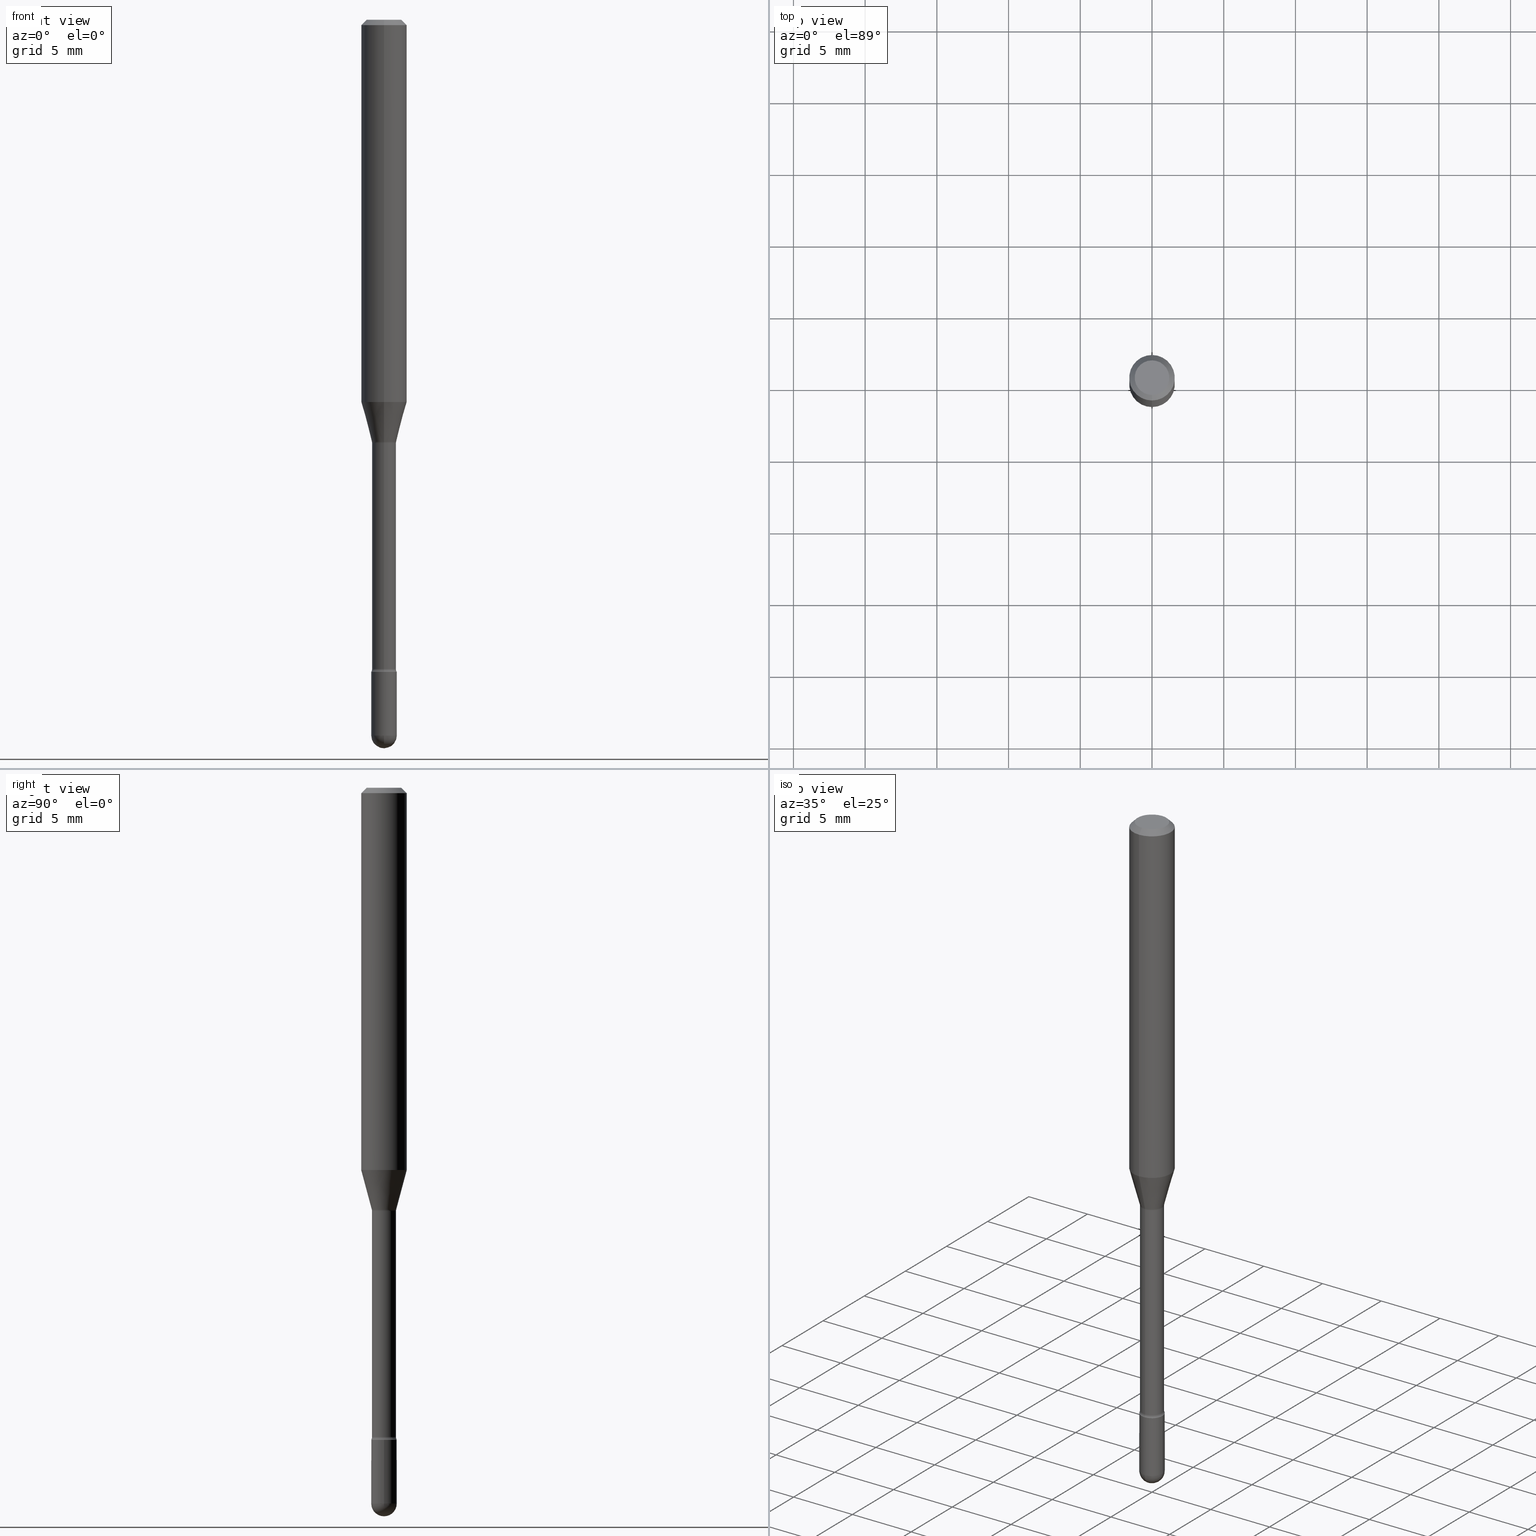
[diagram: canonical four-view strip — front | top / right | iso, engineering-drawing reading convention]
A machine part, canonical four-view strip (front | top / right | iso — engineering-drawing reading convention). The complete STEP part file that produces these views, byte-faithful:
ISO-10303-21;
HEADER;
FILE_DESCRIPTION (( 'STEP AP203' ),
    '1' );
FILE_NAME ('09814.STEP',
    '2024-04-10T01:43:54',
    ( '' ),
    ( '' ),
    'SwSTEP 2.0',
    'SolidWorks 2023',
    '' );
FILE_SCHEMA (( 'CONFIG_CONTROL_DESIGN' ));
ENDSEC;

DATA;
#1 = CARTESIAN_POINT ( 'NONE',  ( -0.03500000000000000333, 2.486899575160350887E-16, -1.721627281589217108E-30 ) ) ;
#2 = PRODUCT_DEFINITION ( 'UNKNOWN', '', #318, #170 ) ;
#3 = VERTEX_POINT ( 'NONE', #83 ) ;
#4 = DIRECTION ( 'NONE',  ( -2.445497683573463397E-29, 3.491439984779462686E-15, 1.000000000000000000 ) ) ;
#5 = VECTOR ( 'NONE', #33, 39.37007874015748854 ) ;
#6 = VERTEX_POINT ( 'NONE', #541 ) ;
#7 = DIRECTION ( 'NONE',  ( -6.982962677686266711E-15, -1.000000000000000000, 3.491439984779463081E-15 ) ) ;
#8 = ORIENTED_EDGE ( 'NONE', *, *, #359, .T. ) ;
#9 = CARTESIAN_POINT ( 'NONE',  ( 4.440892098500625669E-16, 0.06250000000000000000, 2.598583998425296453E-16 ) ) ;
#10 = VERTEX_POINT ( 'NONE', #550 ) ;
#11 = EDGE_CURVE ( 'NONE', #226, #314, #89, .T. ) ;
#12 = EDGE_LOOP ( 'NONE', ( #221, #311, #223, #446 ) ) ;
#13 = FACE_OUTER_BOUND ( 'NONE', #411, .T. ) ;
#14 = ORIENTED_EDGE ( 'NONE', *, *, #23, .F. ) ;
#15 = ORIENTED_EDGE ( 'NONE', *, *, #220, .T. ) ;
#16 =( CONVERSION_BASED_UNIT ( 'INCH', #499 ) LENGTH_UNIT ( ) NAMED_UNIT ( #372 ) );
#17 = DIRECTION ( 'NONE',  ( -1.000000000000000000, 6.982962677686265922E-15, -4.883557194083112340E-29 ) ) ;
#18 = ORIENTED_EDGE ( 'NONE', *, *, #82, .T. ) ;
#19 = DATE_TIME_ROLE ( 'creation_date' ) ;
#20 = DIRECTION ( 'NONE',  ( -2.445497683573463397E-29, 3.491439984779462686E-15, 1.000000000000000000 ) ) ;
#21 = APPROVAL_DATE_TIME ( #423, #224 ) ;
#22 = FACE_OUTER_BOUND ( 'NONE', #322, .T. ) ;
#23 = EDGE_CURVE ( 'NONE', #226, #324, #146, .T. ) ;
#24 = CIRCLE ( 'NONE', #365, 0.03500000000000001721 ) ;
#25 = CALENDAR_DATE ( 2024, 9, 4 ) ;
#26 = CARTESIAN_POINT ( 'NONE',  ( 4.805346204153793345E-29, -6.860760830826780393E-15, -1.964999999999999858 ) ) ;
#27 = PERSON_AND_ORGANIZATION ( #548, #217 ) ;
#28 = DIRECTION ( 'NONE',  ( -6.982962677686266711E-15, -1.000000000000000000, 0.000000000000000000 ) ) ;
#29 = EDGE_CURVE ( 'NONE', #234, #187, #565, .T. ) ;
#30 = DIRECTION ( 'NONE',  ( -2.445497683573463397E-29, 3.491439984779462686E-15, 1.000000000000000000 ) ) ;
#31 = CIRCLE ( 'NONE', #353, 0.03500000000000000333 ) ;
#32 = LOCAL_TIME ( 21, 43, 54.00000000000000000, #412 ) ;
#33 = DIRECTION ( 'NONE',  ( 1.839019923739594793E-15, 0.2588190451025241812, 0.9659258262890673130 ) ) ;
#34 = FACE_OUTER_BOUND ( 'NONE', #39, .T. ) ;
#35 = FACE_OUTER_BOUND ( 'NONE', #177, .T. ) ;
#36 = AXIS2_PLACEMENT_3D ( 'NONE', #515, #113, #339 ) ;
#37 = DIRECTION ( 'NONE',  ( -6.982962677686265922E-15, -1.000000000000000000, 3.483106191921935554E-15 ) ) ;
#38 = CC_DESIGN_APPROVAL ( #349, ( #263 ) ) ;
#39 = EDGE_LOOP ( 'NONE', ( #142, #417, #49, #94 ) ) ;
#40 = EDGE_CURVE ( 'NONE', #324, #270, #68, .T. ) ;
#41 = DIRECTION ( 'NONE',  ( -2.445468806185136597E-29, 3.491481338843145583E-15, 1.000000000000000000 ) ) ;
#42 = ORIENTED_EDGE ( 'NONE', *, *, #413, .T. ) ;
#43 = CARTESIAN_POINT ( 'NONE',  ( 4.805346204153793345E-29, -6.860760830826780393E-15, -1.964999999999999858 ) ) ;
#44 = CIRCLE ( 'NONE', #163, 0.03500000000000000333 ) ;
#45 = VERTEX_POINT ( 'NONE', #544 ) ;
#46 = AXIS2_PLACEMENT_3D ( 'NONE', #132, #92, #449 ) ;
#47 = DIRECTION ( 'NONE',  ( -6.982962677686266711E-15, -1.000000000000000000, 3.491439984779463870E-15 ) ) ;
#48 = ORIENTED_EDGE ( 'NONE', *, *, #40, .T. ) ;
#49 = ORIENTED_EDGE ( 'NONE', *, *, #188, .T. ) ;
#50 = FACE_OUTER_BOUND ( 'NONE', #179, .T. ) ;
#51 = EDGE_LOOP ( 'NONE', ( #376, #14, #308, #102 ) ) ;
#52 = ORIENTED_EDGE ( 'NONE', *, *, #359, .F. ) ;
#53 = CARTESIAN_POINT ( 'NONE',  ( -3.773273898774340269E-16, -0.04749999999999999362, 8.309440288745416751E-17 ) ) ;
#54 = DIRECTION ( 'NONE',  ( -6.982962677686265922E-15, -1.000000000000000000, 0.000000000000000000 ) ) ;
#55 = AXIS2_PLACEMENT_3D ( 'NONE', #128, #172, #218 ) ;
#56 = APPROVAL_PERSON_ORGANIZATION ( #335, #349, #248 ) ;
#57 = ORIENTED_EDGE ( 'NONE', *, *, #329, .F. ) ;
#58 =( LENGTH_UNIT ( ) NAMED_UNIT ( * ) SI_UNIT ( $, .METRE. ) );
#59 = DIRECTION ( 'NONE',  ( -2.445468806185136597E-29, 3.491481338843145583E-15, 1.000000000000000000 ) ) ;
#60 = APPLICATION_PROTOCOL_DEFINITION ( 'international standard', 'config_control_design', 1994, #280 ) ;
#61 = EDGE_CURVE ( 'NONE', #226, #6, #279, .T. ) ;
#62 = CARTESIAN_POINT ( 'NONE',  ( 2.841573096316353332E-29, -4.057013286636126142E-15, -1.161974787463810888 ) ) ;
#63 = ORIENTED_EDGE ( 'NONE', *, *, #29, .T. ) ;
#64 = CARTESIAN_POINT ( 'NONE',  ( 0.000000000000000000, 0.000000000000000000, 0.000000000000000000 ) ) ;
#65 = FACE_OUTER_BOUND ( 'NONE', #489, .T. ) ;
#66 = APPROVAL ( #139, 'UNSPECIFIED' ) ;
#67 = CIRCLE ( 'NONE', #208, 0.04749999999999999362 ) ;
#68 = CIRCLE ( 'NONE', #209, 0.01500000000000001853 ) ;
#69 = DIRECTION ( 'NONE',  ( -2.445497683573463397E-29, 3.491439984779462686E-15, 1.000000000000000000 ) ) ;
#70 = ADVANCED_FACE ( 'NONE', ( #143 ), #328, .F. ) ;
#71 = PLANE ( 'NONE',  #36 ) ;
#72 = CARTESIAN_POINT ( 'NONE',  ( 2.444036937190673962E-16, 0.03499999999999315464, -1.964999999999999858 ) ) ;
#73 = CIRCLE ( 'NONE', #87, 0.03500000000000000333 ) ;
#74 = DATE_AND_TIME ( #393, #229 ) ;
#75 = ADVANCED_FACE ( 'NONE', ( #22 ), #199, .T. ) ;
#76 = CARTESIAN_POINT ( 'NONE',  ( 2.374002335562008662E-16, 0.03341111260565993862, -1.158092501787273187 ) ) ;
#77 = CARTESIAN_POINT ( 'NONE',  ( 2.566626353440528363E-29, -3.664375532466852274E-15, -1.049531296095961297 ) ) ;
#78 = EDGE_CURVE ( 'NONE', #314, #270, #300, .T. ) ;
#79 = DIRECTION ( 'NONE',  ( 6.982962677686265922E-15, 1.000000000000000000, -3.483106191921935554E-15 ) ) ;
#80 = AXIS2_PLACEMENT_3D ( 'NONE', #475, #299, #561 ) ;
#81 = AXIS2_PLACEMENT_3D ( 'NONE', #307, #485, #488 ) ;
#82 = EDGE_CURVE ( 'NONE', #362, #495, #152, .T. ) ;
#83 = CARTESIAN_POINT ( 'NONE',  ( 0.03500000000000000333, -6.799659907397025402E-15, -1.964999999999999858 ) ) ;
#84 = CARTESIAN_POINT ( 'NONE',  ( 3.668246525360215467E-31, -5.237159977169223045E-17, -0.01500000000000008271 ) ) ;
#85 = ORIENTED_EDGE ( 'NONE', *, *, #78, .F. ) ;
#86 = DIRECTION ( 'NONE',  ( -2.445497683573463397E-29, 3.491439984779462686E-15, 1.000000000000000000 ) ) ;
#87 = AXIS2_PLACEMENT_3D ( 'NONE', #371, #140, #326 ) ;
#88 = ORIENTED_EDGE ( 'NONE', *, *, #309, .F. ) ;
#89 = CIRCLE ( 'NONE', #468, 0.01500000000000001853 ) ;
#90 = LOCAL_TIME ( 21, 43, 54.00000000000000000, #457 ) ;
#91 = SPHERICAL_SURFACE ( 'NONE', #509, 0.03500000000000001721 ) ;
#92 = DIRECTION ( 'NONE',  ( -2.445497683573463397E-29, 3.491439984779462686E-15, 1.000000000000000000 ) ) ;
#93 = ORIENTED_EDGE ( 'NONE', *, *, #431, .T. ) ;
#94 = ORIENTED_EDGE ( 'NONE', *, *, #121, .F. ) ;
#95 = DIRECTION ( 'NONE',  ( -6.982962677686265922E-15, -1.000000000000000000, 3.491439984779462292E-15 ) ) ;
#96 = ORIENTED_EDGE ( 'NONE', *, *, #283, .T. ) ;
#97 = EDGE_CURVE ( 'NONE', #324, #226, #312, .T. ) ;
#98 =( NAMED_UNIT ( * ) SI_UNIT ( $, .STERADIAN. ) SOLID_ANGLE_UNIT ( ) );
#99 = CARTESIAN_POINT ( 'NONE',  ( 3.403499704291320534E-16, 0.04789999999999385027, -1.782345589506696415 ) ) ;
#100 = AXIS2_PLACEMENT_3D ( 'NONE', #461, #154, #236 ) ;
#101 = ADVANCED_FACE ( 'NONE', ( #65 ), #115, .F. ) ;
#102 = ORIENTED_EDGE ( 'NONE', *, *, #78, .T. ) ;
#103 = DIRECTION ( 'NONE',  ( -2.445468806185136597E-29, 3.491481338843145583E-15, 1.000000000000000000 ) ) ;
#104 = ORIENTED_EDGE ( 'NONE', *, *, #141, .T. ) ;
#105 = APPROVAL_ROLE ( '' ) ;
#106 = CARTESIAN_POINT ( 'NONE',  ( 4.358722010466005313E-29, -6.222952657899001696E-15, -1.782345589506696193 ) ) ;
#107 = DIRECTION ( 'NONE',  ( 1.000000000000000000, 0.000000000000000000, 0.000000000000000000 ) ) ;
#108 = DIRECTION ( 'NONE',  ( -1.807323732225324617E-15, -0.2588190451025174088, 0.9659258262890690894 ) ) ;
#109 = EDGE_CURVE ( 'NONE', #187, #45, #497, .T. ) ;
#110 = CONICAL_SURFACE ( 'NONE', #305, 0.06250000000000000000, 0.7853981633974483900 ) ;
#111 = CIRCLE ( 'NONE', #80, 0.04749999999999999362 ) ;
#112 = CARTESIAN_POINT ( 'NONE',  ( 4.377440853596499335E-29, -6.249677572755238571E-15, -1.790000000000000036 ) ) ;
#113 = DIRECTION ( 'NONE',  ( -2.438088387897960049E-29, 3.491481338843145188E-15, 1.000000000000000000 ) ) ;
#114 = CARTESIAN_POINT ( 'NONE',  ( 4.377389163071394665E-29, -6.249751596529231267E-15, -1.790000000000000036 ) ) ;
#115 = TOROIDAL_SURFACE ( 'NONE', #171, 0.04789999999999999813, 0.01499999999999998036 ) ;
#116 = DIRECTION ( 'NONE',  ( -2.445497683573463397E-29, 3.491439984779462686E-15, 1.000000000000000000 ) ) ;
#117 = ADVANCED_FACE ( 'NONE', ( #552 ), #503, .T. ) ;
#118 = CC_DESIGN_APPROVAL ( #224, ( #318 ) ) ;
#119 = CARTESIAN_POINT ( 'NONE',  ( -0.03500000000000000333, -6.306566256161970939E-15, -1.964999999999999858 ) ) ;
#120 = DIRECTION ( 'NONE',  ( -6.982962677686265922E-15, -1.000000000000000000, 3.483106191921935554E-15 ) ) ;
#121 = EDGE_CURVE ( 'NONE', #129, #10, #240, .T. ) ;
#122 = VECTOR ( 'NONE', #108, 39.37007874015748854 ) ;
#123 = CARTESIAN_POINT ( 'NONE',  ( 4.805346204153793345E-29, -6.860760830826780393E-15, -1.964999999999999858 ) ) ;
#124 = EDGE_CURVE ( 'NONE', #270, #314, #31, .T. ) ;
#125 = TOROIDAL_SURFACE ( 'NONE', #408, 0.04790000000000007446, 0.01500000000000002373 ) ;
#126 = DIRECTION ( 'NONE',  ( -2.445497683573463397E-29, 3.491439984779462686E-15, 1.000000000000000000 ) ) ;
#127 = ORIENTED_EDGE ( 'NONE', *, *, #109, .F. ) ;
#128 = CARTESIAN_POINT ( 'NONE',  ( 4.805346204153793345E-29, -6.860760830826780393E-15, -1.964999999999999858 ) ) ;
#129 = VERTEX_POINT ( 'NONE', #230 ) ;
#130 = DIRECTION ( 'NONE',  ( -2.445497683573463397E-29, 3.491439984779462686E-15, 1.000000000000000000 ) ) ;
#131 = ORIENTED_EDGE ( 'NONE', *, *, #487, .F. ) ;
#132 = CARTESIAN_POINT ( 'NONE',  ( 2.832112530484573364E-29, -4.043410466813366277E-15, -1.158092501787272965 ) ) ;
#133 = VECTOR ( 'NONE', #126, 39.37007874015748143 ) ;
#134 = ORIENTED_EDGE ( 'NONE', *, *, #395, .T. ) ;
#135 = EDGE_LOOP ( 'NONE', ( #459, #8, #447, #504 ) ) ;
#136 = DIRECTION ( 'NONE',  ( 6.982962677686265922E-15, 1.000000000000000000, -3.491439984779462686E-15 ) ) ;
#137 = ORIENTED_EDGE ( 'NONE', *, *, #292, .F. ) ;
#138 = ORIENTED_EDGE ( 'NONE', *, *, #29, .F. ) ;
#139 = APPROVAL_STATUS ( 'not_yet_approved' ) ;
#140 = DIRECTION ( 'NONE',  ( -2.445468806185136597E-29, 3.491481338843145583E-15, 1.000000000000000000 ) ) ;
#141 = EDGE_CURVE ( 'NONE', #362, #6, #228, .T. ) ;
#142 = ORIENTED_EDGE ( 'NONE', *, *, #247, .F. ) ;
#143 = FACE_OUTER_BOUND ( 'NONE', #530, .T. ) ;
#144 = CIRCLE ( 'NONE', #554, 0.01499999999999997689 ) ;
#145 = LOCAL_TIME ( 21, 43, 54.00000000000000000, #418 ) ;
#146 = CIRCLE ( 'NONE', #443, 0.03290000000000004726 ) ;
#147 = MANIFOLD_SOLID_BREP ( 'Body-Move/Copy2[2]', #176 ) ;
#148 = ORIENTED_EDGE ( 'NONE', *, *, #220, .F. ) ;
#149 = CARTESIAN_POINT ( 'NONE',  ( -1.169113584055446105E-44, 1.669184350826100908E-30, 4.780733988912460139E-16 ) ) ;
#150 = ORIENTED_EDGE ( 'NONE', *, *, #465, .F. ) ;
#151 = DATE_AND_TIME ( #25, #145 ) ;
#152 = LINE ( 'NONE', #192, #122 ) ;
#153 = APPLICATION_PROTOCOL_DEFINITION ( 'international standard', 'config_control_design', 1994, #560 ) ;
#154 = DIRECTION ( 'NONE',  ( -2.445497683573463397E-29, 3.491439984779462686E-15, 1.000000000000000000 ) ) ;
#155 = CARTESIAN_POINT ( 'NONE',  ( 2.832112530484573364E-29, -4.043410466813366277E-15, -1.158092501787272965 ) ) ;
#156 = AXIS2_PLACEMENT_3D ( 'NONE', #155, #338, #559 ) ;
#157 = DIRECTION ( 'NONE',  ( -6.982962677686266711E-15, -1.000000000000000000, 4.151744671222284594E-15 ) ) ;
#158 = CC_DESIGN_PERSON_AND_ORGANIZATION_ASSIGNMENT ( #194, #377, ( #318 ) ) ;
#159 = CYLINDRICAL_SURFACE ( 'NONE', #216, 0.03290000000000002645 ) ;
#160 = AXIS2_PLACEMENT_3D ( 'NONE', #106, #416, #421 ) ;
#161 = EDGE_CURVE ( 'NONE', #45, #3, #73, .T. ) ;
#162 = CARTESIAN_POINT ( 'NONE',  ( 3.668246525360215467E-31, -5.237159977169223045E-17, -0.01500000000000008271 ) ) ;
#163 = AXIS2_PLACEMENT_3D ( 'NONE', #114, #302, #479 ) ;
#164 = CC_DESIGN_PERSON_AND_ORGANIZATION_ASSIGNMENT ( #540, #380, ( #439 ) ) ;
#165 = CONICAL_SURFACE ( 'NONE', #298, 0.06250000000000000000, 0.7853981633974483900 ) ;
#166 = CARTESIAN_POINT ( 'NONE',  ( -1.169113584055446105E-44, 1.669184350826100908E-30, 4.780733988912460139E-16 ) ) ;
#167 = ADVANCED_FACE ( 'NONE', ( #414 ), #287, .F. ) ;
#168 = FACE_OUTER_BOUND ( 'NONE', #193, .T. ) ;
#169 = CARTESIAN_POINT ( 'NONE',  ( -2.333085523452963922E-16, -0.03341111260566802243, -1.158092501787272965 ) ) ;
#170 = DESIGN_CONTEXT ( 'detailed design', #560, 'design' ) ;
#171 = AXIS2_PLACEMENT_3D ( 'NONE', #62, #69, #244 ) ;
#172 = DIRECTION ( 'NONE',  ( -1.000000000000000000, 6.982962677686265922E-15, -4.883557194083112340E-29 ) ) ;
#173 = VERTEX_POINT ( 'NONE', #470 ) ;
#174 = AXIS2_PLACEMENT_3D ( 'NONE', #43, #41, #437 ) ;
#175 = CARTESIAN_POINT ( 'NONE',  ( -4.364351673553658835E-16, -0.06250000000000366374, -1.049531296095960853 ) ) ;
#176 = CLOSED_SHELL ( 'NONE', ( #101, #259, #351, #271, #117, #435, #204, #75, #528, #476, #70, #454, #496, #167 ) ) ;
#177 = EDGE_LOOP ( 'NONE', ( #366, #134, #18, #441 ) ) ;
#178 = DIRECTION ( 'NONE',  ( -2.445468806185136877E-29, 3.491481338843145188E-15, 1.000000000000000000 ) ) ;
#179 = EDGE_LOOP ( 'NONE', ( #399, #483, #352, #15, #183 ) ) ;
#180 = ADVANCED_FACE ( 'NONE', ( #556 ), #71, .T. ) ;
#181 = CARTESIAN_POINT ( 'NONE',  ( 0.000000000000000000, 0.000000000000000000, 0.000000000000000000 ) ) ;
#182 = ADVANCED_BREP_SHAPE_REPRESENTATION ( '09814', ( #341, #147, #242 ), #555 ) ;
#183 = ORIENTED_EDGE ( 'NONE', *, *, #413, .F. ) ;
#184 = ORIENTED_EDGE ( 'NONE', *, *, #124, .T. ) ;
#185 = DIRECTION ( 'NONE',  ( 2.445497683573463397E-29, -3.491439984779462686E-15, -1.000000000000000000 ) ) ;
#186 = EDGE_LOOP ( 'NONE', ( #258, #48, #184, #272 ) ) ;
#187 = VERTEX_POINT ( 'NONE', #119 ) ;
#188 = EDGE_CURVE ( 'NONE', #462, #10, #385, .T. ) ;
#189 = DIRECTION ( 'NONE',  ( -6.982962677686266711E-15, -1.000000000000000000, 0.000000000000000000 ) ) ;
#190 = ORIENTED_EDGE ( 'NONE', *, *, #520, .T. ) ;
#191 = APPROVAL_DATE_TIME ( #469, #66 ) ;
#192 = CARTESIAN_POINT ( 'NONE',  ( -2.333085523452963922E-16, -0.03341111260566802243, -1.158092501787272965 ) ) ;
#193 = EDGE_LOOP ( 'NONE', ( #539, #407, #265, #261 ) ) ;
#194 = PERSON_AND_ORGANIZATION ( #548, #217 ) ;
#195 = DIRECTION ( 'NONE',  ( -2.445497683573463117E-29, 3.491439984779462686E-15, 1.000000000000000000 ) ) ;
#196 = TOROIDAL_SURFACE ( 'NONE', #516, 0.04790000000000007446, 0.01500000000000002373 ) ;
#197 = EDGE_CURVE ( 'NONE', #324, #275, #390, .T. ) ;
#198 = DIRECTION ( 'NONE',  ( -6.982962677686267499E-15, -1.000000000000000000, 0.000000000000000000 ) ) ;
#199 = CYLINDRICAL_SURFACE ( 'NONE', #436, 0.06250000000000000000 ) ;
#200 = DIRECTION ( 'NONE',  ( -2.445497683573463397E-29, 3.491439984779462686E-15, 1.000000000000000000 ) ) ;
#201 = DIRECTION ( 'NONE',  ( -2.445497683573463397E-29, 3.491439984779462686E-15, 1.000000000000000000 ) ) ;
#202 = CIRCLE ( 'NONE', #156, 0.03341111260566398400 ) ;
#203 = CARTESIAN_POINT ( 'NONE',  ( 4.892434153376336703E-29, -6.980819545787783111E-15, -2.000000000000000000 ) ) ;
#204 = ADVANCED_FACE ( 'NONE', ( #35 ), #563, .T. ) ;
#205 = CARTESIAN_POINT ( 'NONE',  ( 2.337685600650730998E-16, 0.03290000000000002645, 3.632050233920016564E-16 ) ) ;
#206 = CARTESIAN_POINT ( 'NONE',  ( -2.297394720958349133E-16, -0.03290000000000627145, -1.782345589506696193 ) ) ;
#207 = EDGE_CURVE ( 'NONE', #6, #275, #453, .T. ) ;
#208 = AXIS2_PLACEMENT_3D ( 'NONE', #350, #4, #7 ) ;
#209 = AXIS2_PLACEMENT_3D ( 'NONE', #99, #381, #378 ) ;
#210 = LOCAL_TIME ( 21, 43, 54.00000000000000000, #460 ) ;
#211 = DIRECTION ( 'NONE',  ( -2.445497683573463397E-29, 3.491439984779462686E-15, 1.000000000000000000 ) ) ;
#212 = UNCERTAINTY_MEASURE_WITH_UNIT (LENGTH_MEASURE( 1.000000000000000082E-05 ), #16, 'distance_accuracy_value', 'NONE');
#213 = VERTEX_POINT ( 'NONE', #249 ) ;
#214 = CARTESIAN_POINT ( 'NONE',  ( 2.832112530484573364E-29, -4.043410466813366277E-15, -1.158092501787272965 ) ) ;
#215 = ORIENTED_EDGE ( 'NONE', *, *, #395, .F. ) ;
#216 = AXIS2_PLACEMENT_3D ( 'NONE', #166, #345, #429 ) ;
#217 = ORGANIZATION ( 'UNSPECIFIED', 'UNSPECIFIED', '' ) ;
#218 = DIRECTION ( 'NONE',  ( 6.982962677686265922E-15, 1.000000000000000000, 0.000000000000000000 ) ) ;
#219 = CLOSED_SHELL ( 'NONE', ( #514, #320, #180, #422, #557 ) ) ;
#220 = EDGE_CURVE ( 'NONE', #3, #404, #301, .T. ) ;
#221 = ORIENTED_EDGE ( 'NONE', *, *, #197, .F. ) ;
#222 = LINE ( 'NONE', #9, #442 ) ;
#223 = ORIENTED_EDGE ( 'NONE', *, *, #61, .T. ) ;
#224 = APPROVAL ( #276, 'UNSPECIFIED' ) ;
#225 = SPHERICAL_SURFACE ( 'NONE', #55, 0.03500000000000001721 ) ;
#226 = VERTEX_POINT ( 'NONE', #206 ) ;
#227 = EDGE_CURVE ( 'NONE', #274, #45, #24, .T. ) ;
#228 = CIRCLE ( 'NONE', #241, 0.01499999999999997689 ) ;
#229 = LOCAL_TIME ( 21, 43, 54.00000000000000000, #303 ) ;
#230 = CARTESIAN_POINT ( 'NONE',  ( 3.840629472727447874E-16, 0.04749999999999999362, -2.485923956665947374E-16 ) ) ;
#231 = ORIENTED_EDGE ( 'NONE', *, *, #487, .T. ) ;
#232 = CALENDAR_DATE ( 2024, 9, 4 ) ;
#233 = DIRECTION ( 'NONE',  ( -6.982962677686265922E-15, -1.000000000000000000, 0.000000000000000000 ) ) ;
#234 = VERTEX_POINT ( 'NONE', #72 ) ;
#235 = PERSON_AND_ORGANIZATION_ROLE ( 'creator' ) ;
#236 = DIRECTION ( 'NONE',  ( -6.982962677686265922E-15, -1.000000000000000000, 3.491439984779462292E-15 ) ) ;
#237 = EDGE_CURVE ( 'NONE', #332, #173, #474, .T. ) ;
#238 = ORIENTED_EDGE ( 'NONE', *, *, #188, .F. ) ;
#239 = PERSON_AND_ORGANIZATION_ROLE ( 'classification_officer' ) ;
#240 = LINE ( 'NONE', #337, #467 ) ;
#241 = AXIS2_PLACEMENT_3D ( 'NONE', #410, #17, #189 ) ;
#242 = AXIS2_PLACEMENT_3D ( 'NONE', #64, #370, #107 ) ;
#243 = MECHANICAL_CONTEXT ( 'NONE', #280, 'mechanical' ) ;
#244 = DIRECTION ( 'NONE',  ( -6.982962677686266711E-15, -1.000000000000000000, 3.491439984779462686E-15 ) ) ;
#245 = PRODUCT_RELATED_PRODUCT_CATEGORY ( 'detail', '', ( #439 ) ) ;
#246 = CARTESIAN_POINT ( 'NONE',  ( 2.832112530484573364E-29, -4.043410466813366277E-15, -1.158092501787272965 ) ) ;
#247 = EDGE_CURVE ( 'NONE', #438, #129, #111, .T. ) ;
#248 = APPROVAL_ROLE ( '' ) ;
#249 = CARTESIAN_POINT ( 'NONE',  ( -0.03500000000000000333, -6.306566256161970939E-15, -1.790000000000000036 ) ) ;
#250 = CONICAL_SURFACE ( 'NONE', #392, 0.03341111260566398400, 0.2617993877991495189 ) ;
#251 = CARTESIAN_POINT ( 'NONE',  ( 2.841606651113517657E-29, -4.056965234256767798E-15, -1.161974787463810888 ) ) ;
#252 = DIRECTION ( 'NONE',  ( -2.445497683573463397E-29, 3.491439984779462686E-15, 1.000000000000000000 ) ) ;
#253 = EDGE_CURVE ( 'NONE', #173, #495, #336, .T. ) ;
#254 = DIRECTION ( 'NONE',  ( 2.445497683573463397E-29, -3.491439984779462686E-15, -1.000000000000000000 ) ) ;
#255 = VECTOR ( 'NONE', #252, 39.37007874015748143 ) ;
#256 = CC_DESIGN_PERSON_AND_ORGANIZATION_ASSIGNMENT ( #282, #235, ( #2 ) ) ;
#257 = FACE_OUTER_BOUND ( 'NONE', #535, .T. ) ;
#258 = ORIENTED_EDGE ( 'NONE', *, *, #97, .F. ) ;
#259 = ADVANCED_FACE ( 'NONE', ( #168 ), #159, .T. ) ;
#260 = LINE ( 'NONE', #264, #490 ) ;
#261 = ORIENTED_EDGE ( 'NONE', *, *, #61, .F. ) ;
#262 = AXIS2_PLACEMENT_3D ( 'NONE', #246, #116, #293 ) ;
#263 = SECURITY_CLASSIFICATION ( '', '', #546 ) ;
#264 = CARTESIAN_POINT ( 'NONE',  ( -4.287811248607203282E-16, -0.06250000000000005551, -0.01499999999999986587 ) ) ;
#265 = ORIENTED_EDGE ( 'NONE', *, *, #207, .F. ) ;
#266 = CC_DESIGN_DATE_AND_TIME_ASSIGNMENT ( #151, #382, ( #263 ) ) ;
#267 = ORIENTED_EDGE ( 'NONE', *, *, #253, .T. ) ;
#268 = DIRECTION ( 'NONE',  ( -1.000000000000000000, 6.982962677686265922E-15, -4.883557194083112340E-29 ) ) ;
#269 = CARTESIAN_POINT ( 'NONE',  ( -4.364351673553916201E-16, -0.06250000000000000000, 6.962883979399624318E-16 ) ) ;
#270 = VERTEX_POINT ( 'NONE', #478 ) ;
#271 = ADVANCED_FACE ( 'NONE', ( #34 ), #110, .T. ) ;
#272 = ORIENTED_EDGE ( 'NONE', *, *, #11, .F. ) ;
#273 = LINE ( 'NONE', #1, #501 ) ;
#274 = VERTEX_POINT ( 'NONE', #203 ) ;
#275 = VERTEX_POINT ( 'NONE', #562 ) ;
#276 = APPROVAL_STATUS ( 'not_yet_approved' ) ;
#277 = CIRCLE ( 'NONE', #174, 0.03500000000000000333 ) ;
#278 = CARTESIAN_POINT ( 'NONE',  ( -2.297394720958783499E-16, -0.03290000000000002645, 5.929417743904905687E-16 ) ) ;
#279 = LINE ( 'NONE', #278, #534 ) ;
#280 = APPLICATION_CONTEXT ( 'configuration controlled 3d designs of mechanical parts and assemblies' ) ;
#281 = ORIENTED_EDGE ( 'NONE', *, *, #207, .T. ) ;
#282 = PERSON_AND_ORGANIZATION ( #548, #217 ) ;
#283 = EDGE_CURVE ( 'NONE', #10, #462, #363, .T. ) ;
#284 = CARTESIAN_POINT ( 'NONE',  ( 4.805346204153793345E-29, -6.860760830826780393E-15, -1.964999999999999858 ) ) ;
#285 = DATE_AND_TIME ( #505, #32 ) ;
#286 = DIRECTION ( 'NONE',  ( 1.000000000000000000, -6.982962677686276966E-15, 0.000000000000000000 ) ) ;
#287 = TOROIDAL_SURFACE ( 'NONE', #433, 0.04789999999999999813, 0.01499999999999998036 ) ;
#288 = APPROVAL_PERSON_ORGANIZATION ( #510, #66, #289 ) ;
#289 = APPROVAL_ROLE ( '' ) ;
#290 = DIRECTION ( 'NONE',  ( 1.000000000000000000, -6.982962677686276966E-15, 0.000000000000000000 ) ) ;
#291 = DIRECTION ( 'NONE',  ( 6.982962677686265922E-15, 1.000000000000000000, 0.000000000000000000 ) ) ;
#292 = EDGE_CURVE ( 'NONE', #495, #173, #524, .T. ) ;
#293 = DIRECTION ( 'NONE',  ( -6.982962677686266711E-15, -1.000000000000000000, 4.088232597799137334E-15 ) ) ;
#294 = DIRECTION ( 'NONE',  ( 7.105427357601001859E-15, 1.000000000000000000, 0.000000000000000000 ) ) ;
#295 = SHAPE_DEFINITION_REPRESENTATION ( #355, #182 ) ;
#296 = CARTESIAN_POINT ( 'NONE',  ( 0.03500000000000000333, -2.444036937190193250E-16, 1.706661871528577808E-30 ) ) ;
#297 = AXIS2_PLACEMENT_3D ( 'NONE', #394, #388, #517 ) ;
#298 = AXIS2_PLACEMENT_3D ( 'NONE', #84, #185, #531 ) ;
#299 = DIRECTION ( 'NONE',  ( -2.445497683573463397E-29, 3.491439984779462686E-15, 1.000000000000000000 ) ) ;
#300 = CIRCLE ( 'NONE', #346, 0.03500000000000000333 ) ;
#301 = LINE ( 'NONE', #296, #533 ) ;
#302 = DIRECTION ( 'NONE',  ( -2.445468806185136597E-29, 3.491481338843145583E-15, 1.000000000000000000 ) ) ;
#303 = COORDINATED_UNIVERSAL_TIME_OFFSET ( 5, 0, .BEHIND. ) ;
#304 = DIRECTION ( 'NONE',  ( 6.982962677686265922E-15, 1.000000000000000000, 0.000000000000000000 ) ) ;
#305 = AXIS2_PLACEMENT_3D ( 'NONE', #521, #254, #79 ) ;
#306 = AXIS2_PLACEMENT_3D ( 'NONE', #396, #543, #333 ) ;
#307 = CARTESIAN_POINT ( 'NONE',  ( 2.841606651113517657E-29, -4.056965234256767798E-15, -1.161974787463810888 ) ) ;
#308 = ORIENTED_EDGE ( 'NONE', *, *, #11, .T. ) ;
#309 = EDGE_CURVE ( 'NONE', #404, #213, #481, .T. ) ;
#310 = CARTESIAN_POINT ( 'NONE',  ( -1.169113584055446105E-44, 1.669184350826100908E-30, 4.780733988912460139E-16 ) ) ;
#311 = ORIENTED_EDGE ( 'NONE', *, *, #97, .T. ) ;
#312 = CIRCLE ( 'NONE', #160, 0.03290000000000004726 ) ;
#313 = AXIS2_PLACEMENT_3D ( 'NONE', #284, #103, #383 ) ;
#314 = VERTEX_POINT ( 'NONE', #386 ) ;
#315 = CARTESIAN_POINT ( 'NONE',  ( 4.805346204153793345E-29, -6.860760830826780393E-15, -1.964999999999999858 ) ) ;
#316 = AXIS2_PLACEMENT_3D ( 'NONE', #398, #494, #136 ) ;
#317 = AXIS2_PLACEMENT_3D ( 'NONE', #26, #59, #286 ) ;
#318 = PRODUCT_DEFINITION_FORMATION_WITH_SPECIFIED_SOURCE ( 'ANY', '', #439, .NOT_KNOWN. ) ;
#319 = DIRECTION ( 'NONE',  ( -2.445497683573463397E-29, 3.491439984779462686E-15, 1.000000000000000000 ) ) ;
#320 = ADVANCED_FACE ( 'NONE', ( #360 ), #91, .T. ) ;
#321 = EDGE_LOOP ( 'NONE', ( #63, #330, #88, #148, #450 ) ) ;
#322 = EDGE_LOOP ( 'NONE', ( #368, #267, #325, #498 ) ) ;
#323 = CARTESIAN_POINT ( 'NONE',  ( 4.358670540980284355E-29, -6.223026365132014624E-15, -1.782345589506696193 ) ) ;
#324 = VERTEX_POINT ( 'NONE', #448 ) ;
#325 = ORIENTED_EDGE ( 'NONE', *, *, #472, .T. ) ;
#326 = DIRECTION ( 'NONE',  ( 1.000000000000000000, -6.982962677686276966E-15, 0.000000000000000000 ) ) ;
#327 = AXIS2_PLACEMENT_3D ( 'NONE', #162, #342, #37 ) ;
#328 = PLANE ( 'NONE',  #558 ) ;
#329 = EDGE_CURVE ( 'NONE', #332, #275, #144, .T. ) ;
#330 = ORIENTED_EDGE ( 'NONE', *, *, #445, .T. ) ;
#331 = CARTESIAN_POINT ( 'NONE',  ( 2.444036937190630575E-16, 0.03499999999999375139, -1.790000000000000036 ) ) ;
#332 = VERTEX_POINT ( 'NONE', #364 ) ;
#333 = DIRECTION ( 'NONE',  ( 1.000000000000000000, -6.982962677686265922E-15, 4.876176775795936353E-29 ) ) ;
#334 = DIRECTION ( 'NONE',  ( -2.445497683573463397E-29, 3.491439984779462686E-15, 1.000000000000000000 ) ) ;
#335 = PERSON_AND_ORGANIZATION ( #548, #217 ) ;
#336 = CIRCLE ( 'NONE', #343, 0.06250000000000000000 ) ;
#337 = CARTESIAN_POINT ( 'NONE',  ( 4.364351673553919652E-16, 0.06249999999999995143, -0.01500000000000030129 ) ) ;
#338 = DIRECTION ( 'NONE',  ( -2.445497683573463397E-29, 3.491439984779462686E-15, 1.000000000000000000 ) ) ;
#339 = DIRECTION ( 'NONE',  ( 1.000000000000000000, -6.982962677686265922E-15, 4.876176775795935793E-29 ) ) ;
#340 = DIRECTION ( 'NONE',  ( -2.445468806185136877E-29, 3.491481338843145188E-15, 1.000000000000000000 ) ) ;
#341 = MANIFOLD_SOLID_BREP ( 'Body-Move/Copy2[1]', #219 ) ;
#342 = DIRECTION ( 'NONE',  ( -2.445497683573463397E-29, 3.491439984779462686E-15, 1.000000000000000000 ) ) ;
#343 = AXIS2_PLACEMENT_3D ( 'NONE', #77, #30, #391 ) ;
#344 = APPROVAL_PERSON_ORGANIZATION ( #415, #224, #105 ) ;
#345 = DIRECTION ( 'NONE',  ( -2.445497683573463397E-29, 3.491439984779462686E-15, 1.000000000000000000 ) ) ;
#346 = AXIS2_PLACEMENT_3D ( 'NONE', #464, #20, #233 ) ;
#347 = APPROVAL_STATUS ( 'not_yet_approved' ) ;
#348 = DIRECTION ( 'NONE',  ( -2.445468806185136597E-29, 3.491481338843145583E-15, 1.000000000000000000 ) ) ;
#349 = APPROVAL ( #347, 'UNSPECIFIED' ) ;
#350 = CARTESIAN_POINT ( 'NONE',  ( 2.023762844999115351E-45, -2.888933844171342410E-31, -8.274899638957028495E-17 ) ) ;
#351 = ADVANCED_FACE ( 'NONE', ( #519 ), #125, .F. ) ;
#352 = ORIENTED_EDGE ( 'NONE', *, *, #161, .T. ) ;
#353 = AXIS2_PLACEMENT_3D ( 'NONE', #112, #452, #54 ) ;
#354 = FACE_OUTER_BOUND ( 'NONE', #373, .T. ) ;
#355 = PRODUCT_DEFINITION_SHAPE ( 'NONE', 'NONE',  #2 ) ;
#356 = ORIENTED_EDGE ( 'NONE', *, *, #237, .T. ) ;
#357 = CYLINDRICAL_SURFACE ( 'NONE', #387, 0.03500000000000000333 ) ;
#358 = ORIENTED_EDGE ( 'NONE', *, *, #292, .T. ) ;
#359 = EDGE_CURVE ( 'NONE', #274, #234, #426, .T. ) ;
#360 = FACE_OUTER_BOUND ( 'NONE', #502, .T. ) ;
#361 = DIRECTION ( 'NONE',  ( 1.000000000000000000, -6.982962677686265922E-15, 4.876176775795936353E-29 ) ) ;
#362 = VERTEX_POINT ( 'NONE', #169 ) ;
#363 = CIRCLE ( 'NONE', #327, 0.06250000000000000000 ) ;
#364 = CARTESIAN_POINT ( 'NONE',  ( 3.407447217031446095E-16, 0.03341111260565993862, -1.158092501787273187 ) ) ;
#365 = AXIS2_PLACEMENT_3D ( 'NONE', #425, #471, #522 ) ;
#366 = ORIENTED_EDGE ( 'NONE', *, *, #237, .F. ) ;
#367 = CYLINDRICAL_SURFACE ( 'NONE', #306, 0.03500000000000000333 ) ;
#368 = ORIENTED_EDGE ( 'NONE', *, *, #431, .F. ) ;
#369 = ORIENTED_EDGE ( 'NONE', *, *, #82, .F. ) ;
#370 = DIRECTION ( 'NONE',  ( 0.000000000000000000, 0.000000000000000000, 1.000000000000000000 ) ) ;
#371 = CARTESIAN_POINT ( 'NONE',  ( 4.805346204153793345E-29, -6.860760830826780393E-15, -1.964999999999999858 ) ) ;
#372 = DIMENSIONAL_EXPONENTS ( 1.000000000000000000, 0.000000000000000000, 0.000000000000000000, 0.000000000000000000, 0.000000000000000000, 0.000000000000000000, 0.000000000000000000 ) ;
#373 = EDGE_LOOP ( 'NONE', ( #486, #356, #137, #369 ) ) ;
#374 = CALENDAR_DATE ( 2024, 9, 4 ) ;
#375 = CARTESIAN_POINT ( 'NONE',  ( -3.344839122611290224E-16, -0.04790000000000629171, -1.782345589506695971 ) ) ;
#376 = ORIENTED_EDGE ( 'NONE', *, *, #40, .F. ) ;
#377 = PERSON_AND_ORGANIZATION_ROLE ( 'creator' ) ;
#378 = DIRECTION ( 'NONE',  ( 7.105427357601001859E-15, 1.000000000000000000, 0.000000000000000000 ) ) ;
#379 = CC_DESIGN_PERSON_AND_ORGANIZATION_ASSIGNMENT ( #463, #551, ( #318 ) ) ;
#380 = PERSON_AND_ORGANIZATION_ROLE ( 'design_owner' ) ;
#381 = DIRECTION ( 'NONE',  ( 1.000000000000000000, -7.105427357601001070E-15, 4.926315002100865368E-29 ) ) ;
#382 = DATE_TIME_ROLE ( 'classification_date' ) ;
#383 = DIRECTION ( 'NONE',  ( 1.000000000000000000, -6.982962677686276966E-15, 0.000000000000000000 ) ) ;
#384 = DIRECTION ( 'NONE',  ( -6.982962677686265922E-15, -1.000000000000000000, 3.491439984779462292E-15 ) ) ;
#385 = CIRCLE ( 'NONE', #400, 0.06250000000000000000 ) ;
#386 = CARTESIAN_POINT ( 'NONE',  ( -2.444036937189756418E-16, -0.03500000000000626221, -1.789999999999999813 ) ) ;
#387 = AXIS2_PLACEMENT_3D ( 'NONE', #181, #529, #361 ) ;
#388 = DIRECTION ( 'NONE',  ( -2.445497683573463397E-29, 3.491439984779462686E-15, 1.000000000000000000 ) ) ;
#389 = CC_DESIGN_PERSON_AND_ORGANIZATION_ASSIGNMENT ( #27, #239, ( #263 ) ) ;
#390 = LINE ( 'NONE', #205, #255 ) ;
#391 = DIRECTION ( 'NONE',  ( -6.982962677686265922E-15, -1.000000000000000000, 4.370956789862821150E-15 ) ) ;
#392 = AXIS2_PLACEMENT_3D ( 'NONE', #214, #319, #444 ) ;
#393 = CALENDAR_DATE ( 2024, 9, 4 ) ;
#394 = CARTESIAN_POINT ( 'NONE',  ( 2.566626353440528363E-29, -3.664375532466852274E-15, -1.049531296095961297 ) ) ;
#395 = EDGE_CURVE ( 'NONE', #332, #362, #202, .T. ) ;
#396 = CARTESIAN_POINT ( 'NONE',  ( 0.000000000000000000, 0.000000000000000000, 0.000000000000000000 ) ) ;
#397 = ORIENTED_EDGE ( 'NONE', *, *, #141, .F. ) ;
#398 = CARTESIAN_POINT ( 'NONE',  ( 3.316907271900976096E-16, 0.04749999999999999362, 3.181880197381339971E-17 ) ) ;
#399 = ORIENTED_EDGE ( 'NONE', *, *, #445, .F. ) ;
#400 = AXIS2_PLACEMENT_3D ( 'NONE', #564, #201, #120 ) ;
#401 = FACE_OUTER_BOUND ( 'NONE', #321, .T. ) ;
#402 = ORIENTED_EDGE ( 'NONE', *, *, #121, .T. ) ;
#403 = FACE_OUTER_BOUND ( 'NONE', #12, .T. ) ;
#404 = VERTEX_POINT ( 'NONE', #513 ) ;
#405 = ORIENTED_EDGE ( 'NONE', *, *, #247, .T. ) ;
#406 = LINE ( 'NONE', #269, #133 ) ;
#407 = ORIENTED_EDGE ( 'NONE', *, *, #197, .T. ) ;
#408 = AXIS2_PLACEMENT_3D ( 'NONE', #508, #200, #384 ) ;
#409 = ORIENTED_EDGE ( 'NONE', *, *, #472, .F. ) ;
#410 = CARTESIAN_POINT ( 'NONE',  ( -3.344839122611437149E-16, -0.04790000000000405045, -1.161974787463810665 ) ) ;
#411 = EDGE_LOOP ( 'NONE', ( #150, #131, #402, #96 ) ) ;
#412 = COORDINATED_UNIVERSAL_TIME_OFFSET ( 5, 0, .BEHIND. ) ;
#413 = EDGE_CURVE ( 'NONE', #213, #404, #44, .T. ) ;
#414 = FACE_OUTER_BOUND ( 'NONE', #492, .T. ) ;
#415 = PERSON_AND_ORGANIZATION ( #548, #217 ) ;
#416 = DIRECTION ( 'NONE',  ( -2.445497683573463397E-29, 3.491439984779462686E-15, 1.000000000000000000 ) ) ;
#417 = ORIENTED_EDGE ( 'NONE', *, *, #465, .T. ) ;
#418 = COORDINATED_UNIVERSAL_TIME_OFFSET ( 5, 0, .BEHIND. ) ;
#419 = AXIS2_PLACEMENT_3D ( 'NONE', #566, #348, #290 ) ;
#420 = AXIS2_PLACEMENT_3D ( 'NONE', #310, #130, #47 ) ;
#421 = DIRECTION ( 'NONE',  ( -6.982962677686266711E-15, -1.000000000000000000, 0.000000000000000000 ) ) ;
#422 = ADVANCED_FACE ( 'NONE', ( #440 ), #225, .T. ) ;
#423 = DATE_AND_TIME ( #374, #90 ) ;
#424 = DIRECTION ( 'NONE',  ( -2.445497683573463397E-29, 3.491439984779462686E-15, 1.000000000000000000 ) ) ;
#425 = CARTESIAN_POINT ( 'NONE',  ( 4.805346204153793345E-29, -6.860760830826780393E-15, -1.964999999999999858 ) ) ;
#426 = CIRCLE ( 'NONE', #473, 0.03500000000000001721 ) ;
#427 = DIRECTION ( 'NONE',  ( -2.445497683573463397E-29, 3.491439984779462686E-15, 1.000000000000000000 ) ) ;
#428 = CIRCLE ( 'NONE', #81, 0.03289999999999999869 ) ;
#429 = DIRECTION ( 'NONE',  ( -6.982962677686266711E-15, -1.000000000000000000, 3.491439984779463870E-15 ) ) ;
#430 = EDGE_CURVE ( 'NONE', #3, #234, #277, .T. ) ;
#431 = EDGE_CURVE ( 'NONE', #173, #10, #222, .T. ) ;
#432 = DIRECTION ( 'NONE',  ( -6.982962677686266711E-15, -1.000000000000000000, 3.491439984779462686E-15 ) ) ;
#433 = AXIS2_PLACEMENT_3D ( 'NONE', #512, #211, #432 ) ;
#434 = CIRCLE ( 'NONE', #46, 0.03341111260566398400 ) ;
#435 = ADVANCED_FACE ( 'NONE', ( #354 ), #250, .T. ) ;
#436 = AXIS2_PLACEMENT_3D ( 'NONE', #149, #424, #506 ) ;
#437 = DIRECTION ( 'NONE',  ( 1.000000000000000000, -6.982962677686276966E-15, 0.000000000000000000 ) ) ;
#438 = VERTEX_POINT ( 'NONE', #53 ) ;
#439 = PRODUCT ( '09814', '09814', '', ( #243 ) ) ;
#440 = FACE_OUTER_BOUND ( 'NONE', #135, .T. ) ;
#441 = ORIENTED_EDGE ( 'NONE', *, *, #253, .F. ) ;
#442 = VECTOR ( 'NONE', #86, 39.37007874015748143 ) ;
#443 = AXIS2_PLACEMENT_3D ( 'NONE', #500, #334, #28 ) ;
#444 = DIRECTION ( 'NONE',  ( -6.982962677686266711E-15, -1.000000000000000000, 4.088232597799137334E-15 ) ) ;
#445 = EDGE_CURVE ( 'NONE', #187, #213, #273, .T. ) ;
#446 = ORIENTED_EDGE ( 'NONE', *, *, #520, .F. ) ;
#447 = ORIENTED_EDGE ( 'NONE', *, *, #430, .F. ) ;
#448 = CARTESIAN_POINT ( 'NONE',  ( 2.412292587905979007E-16, 0.03289999999999382307, -1.782345589506696193 ) ) ;
#449 = DIRECTION ( 'NONE',  ( -6.982962677686266711E-15, -1.000000000000000000, 4.088232597799137334E-15 ) ) ;
#450 = ORIENTED_EDGE ( 'NONE', *, *, #430, .T. ) ;
#451 = PLANE ( 'NONE',  #316 ) ;
#452 = DIRECTION ( 'NONE',  ( -2.445497683573463397E-29, 3.491439984779462686E-15, 1.000000000000000000 ) ) ;
#453 = CIRCLE ( 'NONE', #545, 0.03289999999999999869 ) ;
#454 = ADVANCED_FACE ( 'NONE', ( #482 ), #196, .F. ) ;
#455 = CC_DESIGN_SECURITY_CLASSIFICATION ( #263, ( #318 ) ) ;
#456 = EDGE_LOOP ( 'NONE', ( #527, #42 ) ) ;
#457 = COORDINATED_UNIVERSAL_TIME_OFFSET ( 5, 0, .BEHIND. ) ;
#458 = DIRECTION ( 'NONE',  ( -6.982962677686265922E-15, -1.000000000000000000, 3.491439984779462686E-15 ) ) ;
#459 = ORIENTED_EDGE ( 'NONE', *, *, #227, .F. ) ;
#460 = COORDINATED_UNIVERSAL_TIME_OFFSET ( 5, 0, .BEHIND. ) ;
#461 = CARTESIAN_POINT ( 'NONE',  ( -1.169113584055446105E-44, 1.669184350826100908E-30, 4.780733988912460139E-16 ) ) ;
#462 = VERTEX_POINT ( 'NONE', #526 ) ;
#463 = PERSON_AND_ORGANIZATION ( #548, #217 ) ;
#464 = CARTESIAN_POINT ( 'NONE',  ( 4.377440853596499335E-29, -6.249677572755238571E-15, -1.790000000000000036 ) ) ;
#465 = EDGE_CURVE ( 'NONE', #438, #462, #260, .T. ) ;
#466 =( NAMED_UNIT ( * ) PLANE_ANGLE_UNIT ( ) SI_UNIT ( $, .RADIAN. ) );
#467 = VECTOR ( 'NONE', #511, 39.37007874015748143 ) ;
#468 = AXIS2_PLACEMENT_3D ( 'NONE', #375, #507, #198 ) ;
#469 = DATE_AND_TIME ( #232, #210 ) ;
#470 = CARTESIAN_POINT ( 'NONE',  ( 4.440892098500882541E-16, 0.06249999999999634320, -1.049531296095961519 ) ) ;
#471 = DIRECTION ( 'NONE',  ( -1.000000000000000000, 7.105427357601001070E-15, -4.926315508542082329E-29 ) ) ;
#472 = EDGE_CURVE ( 'NONE', #495, #462, #406, .T. ) ;
#473 = AXIS2_PLACEMENT_3D ( 'NONE', #315, #553, #291 ) ;
#474 = LINE ( 'NONE', #76, #5 ) ;
#475 = CARTESIAN_POINT ( 'NONE',  ( 2.023762844999115351E-45, -2.888933844171342410E-31, -8.274899638957028495E-17 ) ) ;
#476 = ADVANCED_FACE ( 'NONE', ( #257 ), #451, .F. ) ;
#477 = APPROVAL_DATE_TIME ( #74, #349 ) ;
#478 = CARTESIAN_POINT ( 'NONE',  ( 2.486899575160789198E-16, 0.03499999999999375833, -1.790000000000000258 ) ) ;
#479 = DIRECTION ( 'NONE',  ( 1.000000000000000000, -6.982962677686276966E-15, 0.000000000000000000 ) ) ;
#480 = CARTESIAN_POINT ( 'NONE',  ( 3.403499704291162762E-16, 0.04789999999999593888, -1.161974787463810888 ) ) ;
#481 = CIRCLE ( 'NONE', #419, 0.03500000000000000333 ) ;
#482 = FACE_OUTER_BOUND ( 'NONE', #51, .T. ) ;
#483 = ORIENTED_EDGE ( 'NONE', *, *, #109, .T. ) ;
#484 = CC_DESIGN_DATE_AND_TIME_ASSIGNMENT ( #285, #19, ( #2 ) ) ;
#485 = DIRECTION ( 'NONE',  ( -2.445497683573463397E-29, 3.491439984779462686E-15, 1.000000000000000000 ) ) ;
#486 = ORIENTED_EDGE ( 'NONE', *, *, #537, .T. ) ;
#487 = EDGE_CURVE ( 'NONE', #129, #438, #67, .T. ) ;
#488 = DIRECTION ( 'NONE',  ( -6.982962677686266711E-15, -1.000000000000000000, 4.151744671222284594E-15 ) ) ;
#489 = EDGE_LOOP ( 'NONE', ( #215, #538, #190, #397 ) ) ;
#490 = VECTOR ( 'NONE', #491, 39.37007874015748143 ) ;
#491 = DIRECTION ( 'NONE',  ( -4.851104656540964275E-15, -0.7071067811865500152, -0.7071067811865450192 ) ) ;
#492 = EDGE_LOOP ( 'NONE', ( #57, #525, #104, #281 ) ) ;
#493 = EDGE_LOOP ( 'NONE', ( #358, #93, #238, #409 ) ) ;
#494 = DIRECTION ( 'NONE',  ( 2.445497683573463117E-29, -3.491439984779462686E-15, -1.000000000000000000 ) ) ;
#495 = VERTEX_POINT ( 'NONE', #175 ) ;
#496 = ADVANCED_FACE ( 'NONE', ( #403 ), #523, .T. ) ;
#497 = CIRCLE ( 'NONE', #313, 0.03500000000000000333 ) ;
#498 = ORIENTED_EDGE ( 'NONE', *, *, #283, .F. ) ;
#499 = LENGTH_MEASURE_WITH_UNIT ( LENGTH_MEASURE( 0.02539999999999999897 ), #58 );
#500 = CARTESIAN_POINT ( 'NONE',  ( 4.358722010466005313E-29, -6.222952657899001696E-15, -1.782345589506696193 ) ) ;
#501 = VECTOR ( 'NONE', #178, 39.37007874015748143 ) ;
#502 = EDGE_LOOP ( 'NONE', ( #52, #542, #127, #138 ) ) ;
#503 = CYLINDRICAL_SURFACE ( 'NONE', #100, 0.06250000000000000000 ) ;
#504 = ORIENTED_EDGE ( 'NONE', *, *, #161, .F. ) ;
#505 = CALENDAR_DATE ( 2024, 9, 4 ) ;
#506 = DIRECTION ( 'NONE',  ( -6.982962677686265922E-15, -1.000000000000000000, 3.491439984779462292E-15 ) ) ;
#507 = DIRECTION ( 'NONE',  ( -1.000000000000000000, 6.982962677686265922E-15, -4.883557194083112340E-29 ) ) ;
#508 = CARTESIAN_POINT ( 'NONE',  ( 4.358670540980284355E-29, -6.223026365132014624E-15, -1.782345589506696193 ) ) ;
#509 = AXIS2_PLACEMENT_3D ( 'NONE', #123, #268, #304 ) ;
#510 = PERSON_AND_ORGANIZATION ( #548, #217 ) ;
#511 = DIRECTION ( 'NONE',  ( 4.937700262164548042E-15, 0.7071067811865451302, -0.7071067811865499042 ) ) ;
#512 = CARTESIAN_POINT ( 'NONE',  ( 2.841573096316353332E-29, -4.057013286636126142E-15, -1.161974787463810888 ) ) ;
#513 = CARTESIAN_POINT ( 'NONE',  ( 0.03500000000000000333, -6.494155290248250444E-15, -1.790000000000000036 ) ) ;
#514 = ADVANCED_FACE ( 'NONE', ( #401 ), #357, .T. ) ;
#515 = CARTESIAN_POINT ( 'NONE',  ( 4.377389163071394665E-29, -6.249751596529231267E-15, -1.790000000000000036 ) ) ;
#516 = AXIS2_PLACEMENT_3D ( 'NONE', #323, #536, #95 ) ;
#517 = DIRECTION ( 'NONE',  ( -6.982962677686265922E-15, -1.000000000000000000, 4.370956789862821150E-15 ) ) ;
#518 = CC_DESIGN_APPROVAL ( #66, ( #2 ) ) ;
#519 = FACE_OUTER_BOUND ( 'NONE', #186, .T. ) ;
#520 = EDGE_CURVE ( 'NONE', #275, #6, #428, .T. ) ;
#521 = CARTESIAN_POINT ( 'NONE',  ( 3.668246525360215467E-31, -5.237159977169223045E-17, -0.01500000000000008271 ) ) ;
#522 = DIRECTION ( 'NONE',  ( -7.105427357601001859E-15, -1.000000000000000000, 0.000000000000000000 ) ) ;
#523 = CYLINDRICAL_SURFACE ( 'NONE', #420, 0.03290000000000002645 ) ;
#524 = CIRCLE ( 'NONE', #297, 0.06250000000000000000 ) ;
#525 = ORIENTED_EDGE ( 'NONE', *, *, #537, .F. ) ;
#526 = CARTESIAN_POINT ( 'NONE',  ( -4.364351673553912750E-16, -0.06250000000000005551, -0.01499999999999986587 ) ) ;
#527 = ORIENTED_EDGE ( 'NONE', *, *, #309, .T. ) ;
#528 = ADVANCED_FACE ( 'NONE', ( #13 ), #165, .T. ) ;
#529 = DIRECTION ( 'NONE',  ( -2.445468806185136597E-29, 3.491481338843145583E-15, 1.000000000000000000 ) ) ;
#530 = EDGE_LOOP ( 'NONE', ( #85, #532 ) ) ;
#531 = DIRECTION ( 'NONE',  ( 6.982962677686265922E-15, 1.000000000000000000, -3.483106191921935554E-15 ) ) ;
#532 = ORIENTED_EDGE ( 'NONE', *, *, #124, .F. ) ;
#533 = VECTOR ( 'NONE', #340, 39.37007874015748143 ) ;
#534 = VECTOR ( 'NONE', #547, 39.37007874015748143 ) ;
#535 = EDGE_LOOP ( 'NONE', ( #231, #405 ) ) ;
#536 = DIRECTION ( 'NONE',  ( -2.445497683573463397E-29, 3.491439984779462686E-15, 1.000000000000000000 ) ) ;
#537 = EDGE_CURVE ( 'NONE', #362, #332, #434, .T. ) ;
#538 = ORIENTED_EDGE ( 'NONE', *, *, #329, .T. ) ;
#539 = ORIENTED_EDGE ( 'NONE', *, *, #23, .T. ) ;
#540 = PERSON_AND_ORGANIZATION ( #548, #217 ) ;
#541 = CARTESIAN_POINT ( 'NONE',  ( -2.297394720958497537E-16, -0.03290000000000405794, -1.161974787463810888 ) ) ;
#542 = ORIENTED_EDGE ( 'NONE', *, *, #227, .T. ) ;
#543 = DIRECTION ( 'NONE',  ( -2.445468806185136597E-29, 3.491481338843145583E-15, 1.000000000000000000 ) ) ;
#544 = CARTESIAN_POINT ( 'NONE',  ( -2.486899575159870668E-16, -0.03500000000000687284, -1.964999999999999858 ) ) ;
#545 = AXIS2_PLACEMENT_3D ( 'NONE', #251, #427, #157 ) ;
#546 = SECURITY_CLASSIFICATION_LEVEL ( 'unclassified' ) ;
#547 = DIRECTION ( 'NONE',  ( -2.445497683573463397E-29, 3.491439984779462686E-15, 1.000000000000000000 ) ) ;
#548 = PERSON ( 'UNSPECIFIED', 'UNSPECIFIED', 'UNSPECIFIED', ('UNSPECIFIED'), ('UNSPECIFIED'), ('UNSPECIFIED') ) ;
#549 = DIRECTION ( 'NONE',  ( 1.000000000000000000, -7.105427357601001070E-15, 4.926315002100865368E-29 ) ) ;
#550 = CARTESIAN_POINT ( 'NONE',  ( 4.440892098500883528E-16, 0.06249999999999993755, -0.01500000000000030129 ) ) ;
#551 = PERSON_AND_ORGANIZATION_ROLE ( 'design_supplier' ) ;
#552 = FACE_OUTER_BOUND ( 'NONE', #493, .T. ) ;
#553 = DIRECTION ( 'NONE',  ( 1.000000000000000000, -6.982962677686265922E-15, 4.883557194083112340E-29 ) ) ;
#554 = AXIS2_PLACEMENT_3D ( 'NONE', #480, #549, #294 ) ;
#555 =( GEOMETRIC_REPRESENTATION_CONTEXT ( 3 ) GLOBAL_UNCERTAINTY_ASSIGNED_CONTEXT ( ( #212 ) ) GLOBAL_UNIT_ASSIGNED_CONTEXT ( ( #16, #466, #98 ) ) REPRESENTATION_CONTEXT ( 'NONE', 'WORKASPACE' ) );
#556 = FACE_OUTER_BOUND ( 'NONE', #456, .T. ) ;
#557 = ADVANCED_FACE ( 'NONE', ( #50 ), #367, .T. ) ;
#558 = AXIS2_PLACEMENT_3D ( 'NONE', #331, #195, #458 ) ;
#559 = DIRECTION ( 'NONE',  ( -6.982962677686266711E-15, -1.000000000000000000, 4.088232597799137334E-15 ) ) ;
#560 = APPLICATION_CONTEXT ( 'configuration controlled 3d designs of mechanical parts and assemblies' ) ;
#561 = DIRECTION ( 'NONE',  ( -6.982962677686266711E-15, -1.000000000000000000, 3.491439984779463081E-15 ) ) ;
#562 = CARTESIAN_POINT ( 'NONE',  ( 2.337685600651167829E-16, 0.03289999999999595331, -1.161974787463811110 ) ) ;
#563 = CONICAL_SURFACE ( 'NONE', #262, 0.03341111260566398400, 0.2617993877991495189 ) ;
#564 = CARTESIAN_POINT ( 'NONE',  ( 3.668246525360215467E-31, -5.237159977169223045E-17, -0.01500000000000008271 ) ) ;
#565 = CIRCLE ( 'NONE', #317, 0.03500000000000000333 ) ;
#566 = CARTESIAN_POINT ( 'NONE',  ( 4.377389163071394665E-29, -6.249751596529231267E-15, -1.790000000000000036 ) ) ;
ENDSEC;
END-ISO-10303-21;
